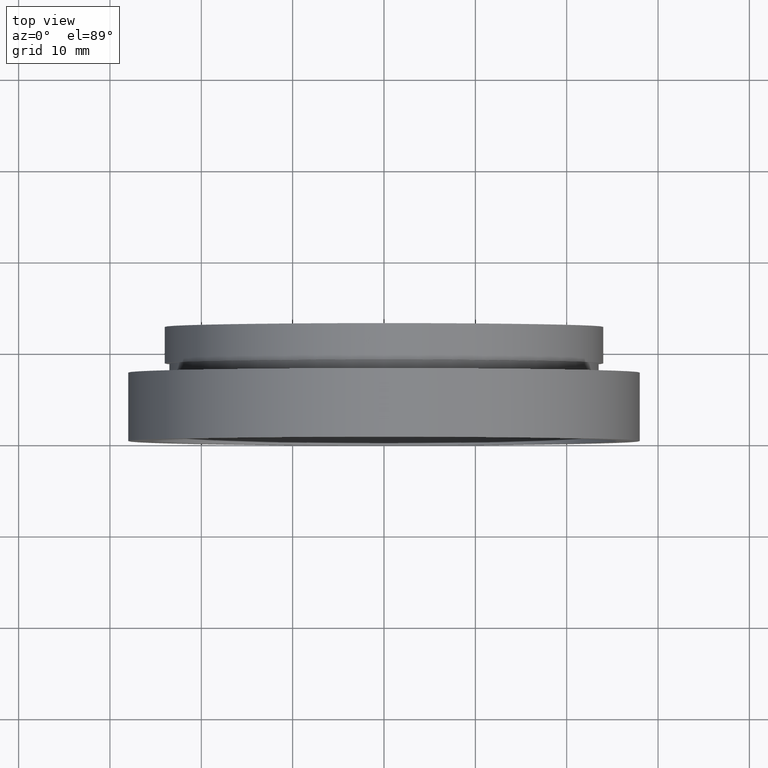
[diagram: clean part render]
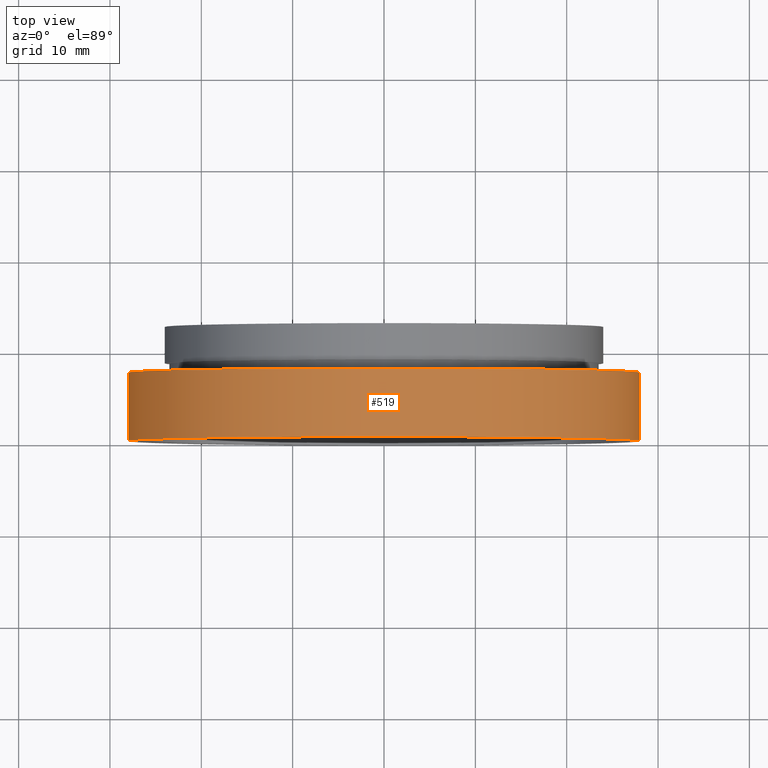
[diagram: same view with one face highlighted and labeled with its STEP entity id]
A machine part, top view. The second image highlights one B-rep face of the part: STEP entity #519.
In plain terms, the highlighted cylindrical surface (partial cylindrical patch) has radius 28 mm, axis along (-0, 1, -0).
Its self-contained STEP definition (entity closure, byte-faithful):
#12 = AXIS2_PLACEMENT_3D ( 'NONE', #605, #163, #102 ) ;
#38 = CARTESIAN_POINT ( 'NONE',  ( 0.0000000000000000000, 16.88601823708207700, 0.0000000000000000000 ) ) ;
#42 = DIRECTION ( 'NONE',  ( -1.224646799147351000E-016, 1.000000000000000000, -0.0000000000000000000 ) ) ;
#47 = EDGE_LOOP ( 'NONE', ( #231, #178, #200, #531 ) ) ;
#53 = CARTESIAN_POINT ( 'NONE',  ( 28.00000000000000400, 7.500000000000000000, 3.429011037612589700E-015 ) ) ;
#95 = AXIS2_PLACEMENT_3D ( 'NONE', #251, #603, #409 ) ;
#102 = DIRECTION ( 'NONE',  ( -1.000000000000000000, -1.239088197126290600E-016, 0.0000000000000000000 ) ) ;
#114 = CYLINDRICAL_SURFACE ( 'NONE', #517, 28.00000000000000400 ) ;
#142 = VERTEX_POINT ( 'NONE', #212 ) ;
#149 = DIRECTION ( 'NONE',  ( -1.000000000000000000, -1.239088197126290600E-016, 0.0000000000000000000 ) ) ;
#163 = DIRECTION ( 'NONE',  ( -1.224646799147351000E-016, 1.000000000000000000, -0.0000000000000000000 ) ) ;
#169 = EDGE_CURVE ( 'NONE', #394, #596, #235, .T. ) ;
#178 = ORIENTED_EDGE ( 'NONE', *, *, #169, .T. ) ;
#200 = ORIENTED_EDGE ( 'NONE', *, *, #455, .F. ) ;
#202 = CARTESIAN_POINT ( 'NONE',  ( -28.00000000000000400, 16.88601823708207300, 0.0000000000000000000 ) ) ;
#212 = CARTESIAN_POINT ( 'NONE',  ( -27.99999999999999600, -6.898457989566196800E-015, 0.0000000000000000000 ) ) ;
#229 = VECTOR ( 'NONE', #255, 1000.000000000000000 ) ;
#231 = ORIENTED_EDGE ( 'NONE', *, *, #362, .T. ) ;
#235 = LINE ( 'NONE', #256, #399 ) ;
#251 = CARTESIAN_POINT ( 'NONE',  ( 2.067940818438636500E-015, -3.469446951953614200E-015, 0.0000000000000000000 ) ) ;
#255 = DIRECTION ( 'NONE',  ( -1.224646799147351000E-016, 1.000000000000000000, -0.0000000000000000000 ) ) ;
#256 = CARTESIAN_POINT ( 'NONE',  ( 28.00000000000000400, 16.88601823708208000, 3.429011037612589700E-015 ) ) ;
#318 = CARTESIAN_POINT ( 'NONE',  ( 28.00000000000000400, -4.043591434103126100E-017, 3.429011037612589700E-015 ) ) ;
#330 = DIRECTION ( 'NONE',  ( -1.224646799147351000E-016, 1.000000000000000000, -0.0000000000000000000 ) ) ;
#355 = EDGE_CURVE ( 'NONE', #142, #442, #518, .T. ) ;
#362 = EDGE_CURVE ( 'NONE', #142, #394, #549, .T. ) ;
#394 = VERTEX_POINT ( 'NONE', #318 ) ;
#399 = VECTOR ( 'NONE', #330, 1000.000000000000000 ) ;
#409 = DIRECTION ( 'NONE',  ( -1.000000000000000000, -1.224646799147351000E-016, 0.0000000000000000000 ) ) ;
#442 = VERTEX_POINT ( 'NONE', #479 ) ;
#455 = EDGE_CURVE ( 'NONE', #442, #596, #474, .T. ) ;
#474 = CIRCLE ( 'NONE', #12, 28.00000000000000400 ) ;
#479 = CARTESIAN_POINT ( 'NONE',  ( -28.00000000000000400, 7.499999999999992900, 0.0000000000000000000 ) ) ;
#517 = AXIS2_PLACEMENT_3D ( 'NONE', #38, #42, #149 ) ;
#518 = LINE ( 'NONE', #202, #229 ) ;
#519 = ADVANCED_FACE ( 'NONE', ( #522 ), #114, .T. ) ;
#522 = FACE_OUTER_BOUND ( 'NONE', #47, .T. ) ;
#531 = ORIENTED_EDGE ( 'NONE', *, *, #355, .F. ) ;
#549 = CIRCLE ( 'NONE', #95, 28.00000000000000000 ) ;
#596 = VERTEX_POINT ( 'NONE', #53 ) ;
#603 = DIRECTION ( 'NONE',  ( -1.224646799147351000E-016, 1.000000000000000000, -0.0000000000000000000 ) ) ;
#605 = CARTESIAN_POINT ( 'NONE',  ( 1.149455719078123100E-015, 7.499999999999996400, 0.0000000000000000000 ) ) ;